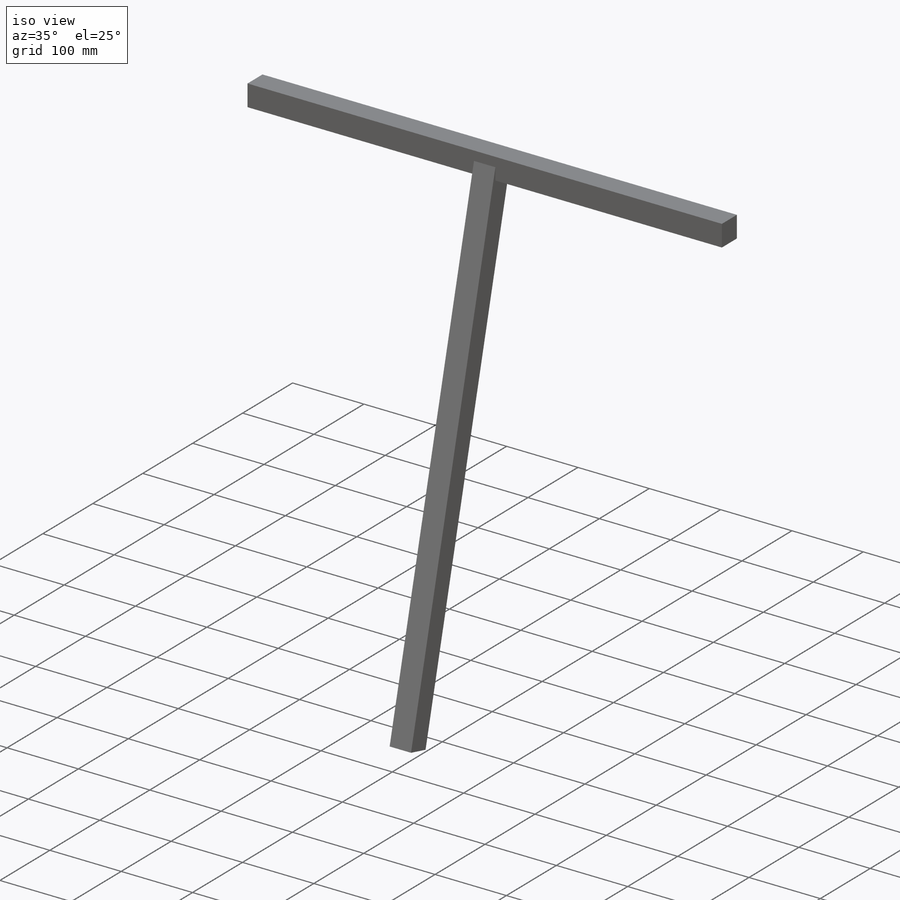
[diagram: iso view]
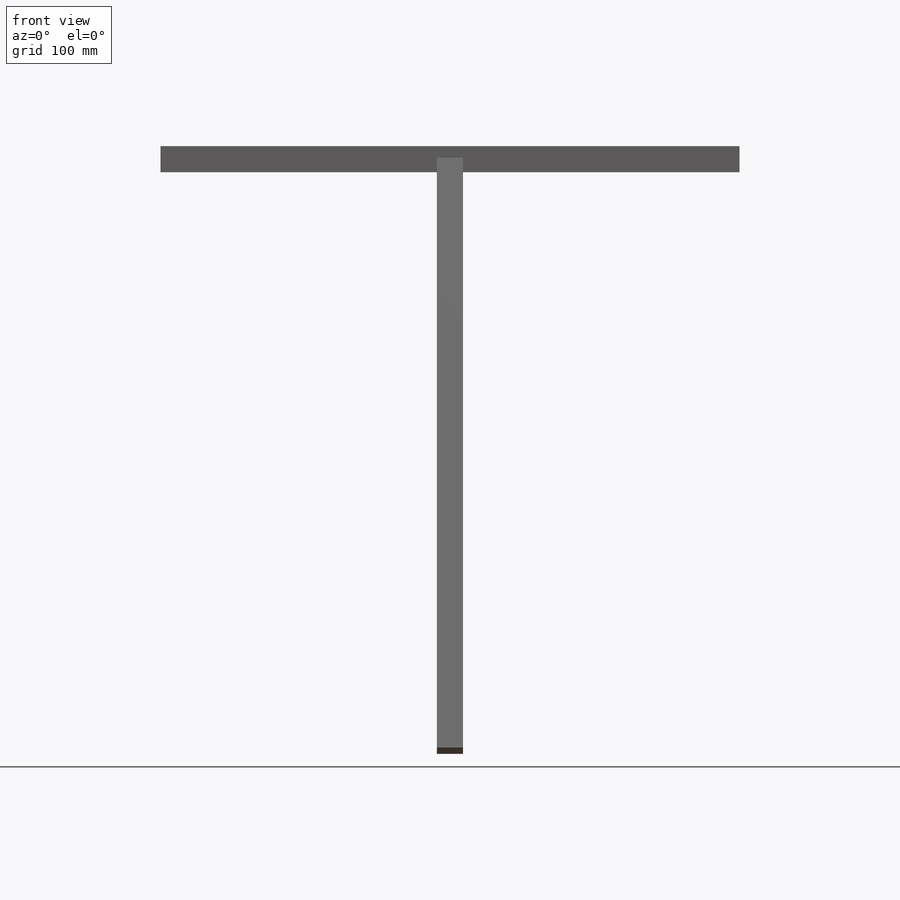
[diagram: front view]
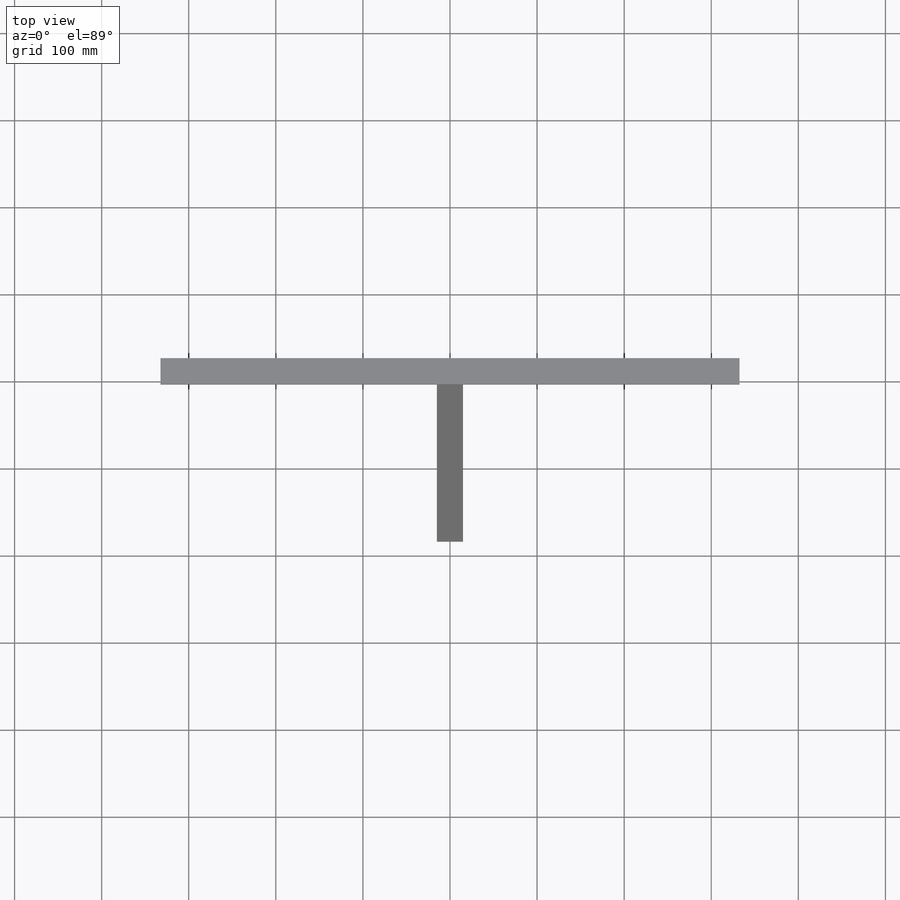
[diagram: top view]
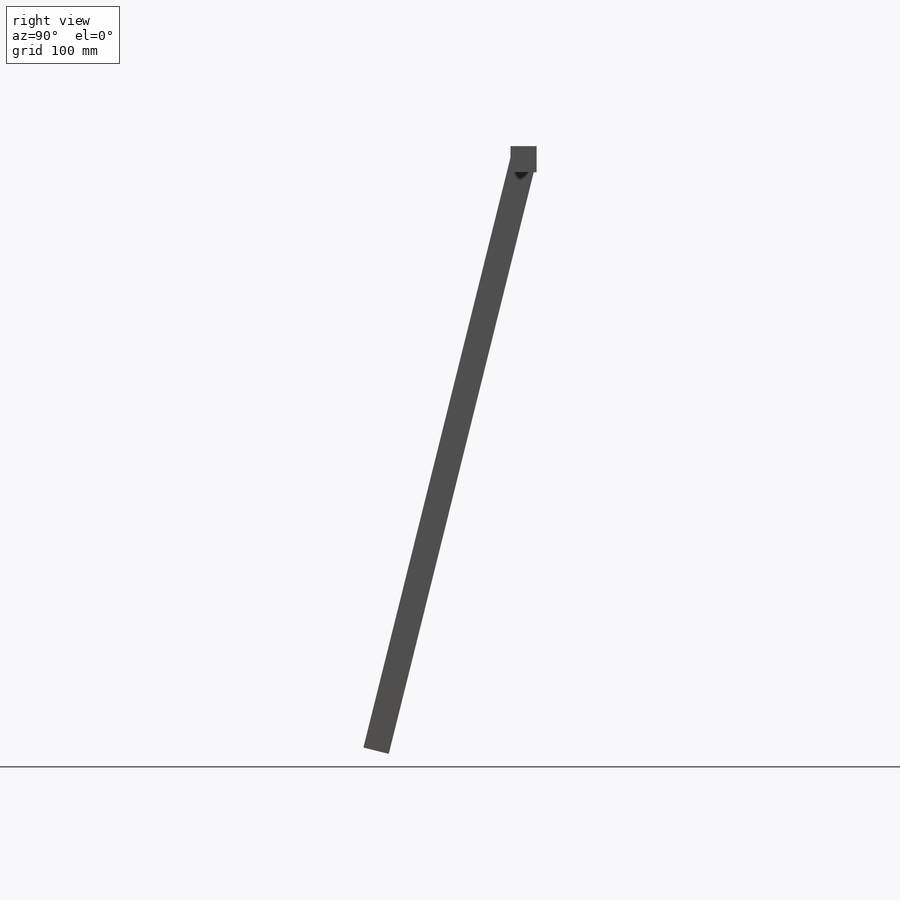
[diagram: right view]
SOLIDWORKS PART (.sldprt)
format: sldprt  version: not decoded by parser v0  size: 159,744 bytes
history: native  units: mm
features: sketch x3, extrude x2, material x1 (+12 scaffold rows collapsed)
feature tree (18):
  scaffold x12  (default folders/planes/origin — collapsed)
  material  "Material <not specified>"
  sketch  "Sketch1"  dims[D1=30.0mm D2=30.0mm]
  extrude  "Boss-Extrude1"  Depth=332.5mm
  sketch  "3DSketch1"  dims[D1=346.0deg]
  sketch  "Sketch2"  dims[D1=30.0mm D2=30.0mm D3=332.5mm]
  extrude  "Boss-Extrude2"  Depth=700mm
decode coverage: 5 of 5 modeling features carry decoded parameters
note: suppression state not decoded; provenance and decode notes live in map.json
